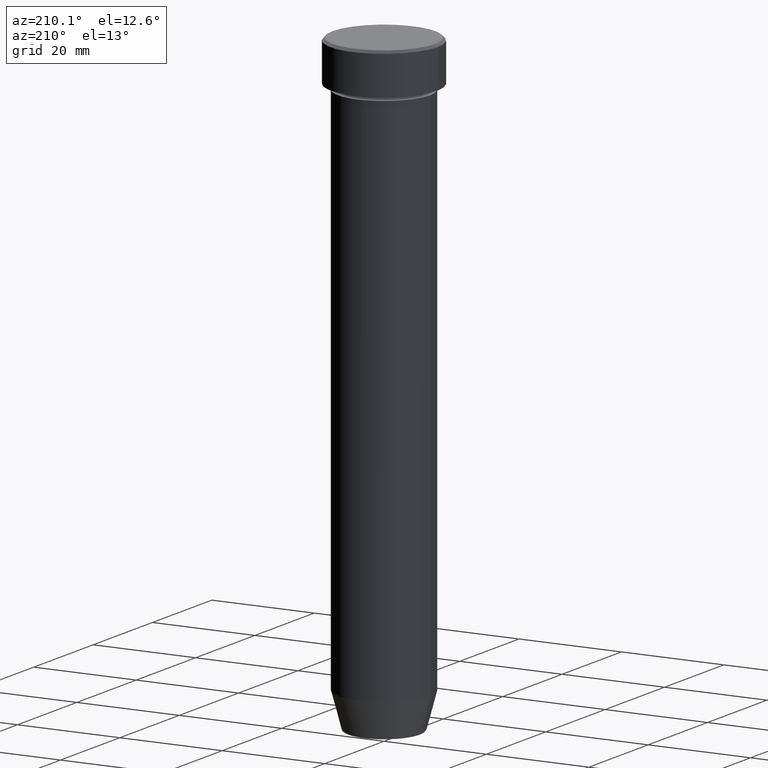
[diagram: clean part render]
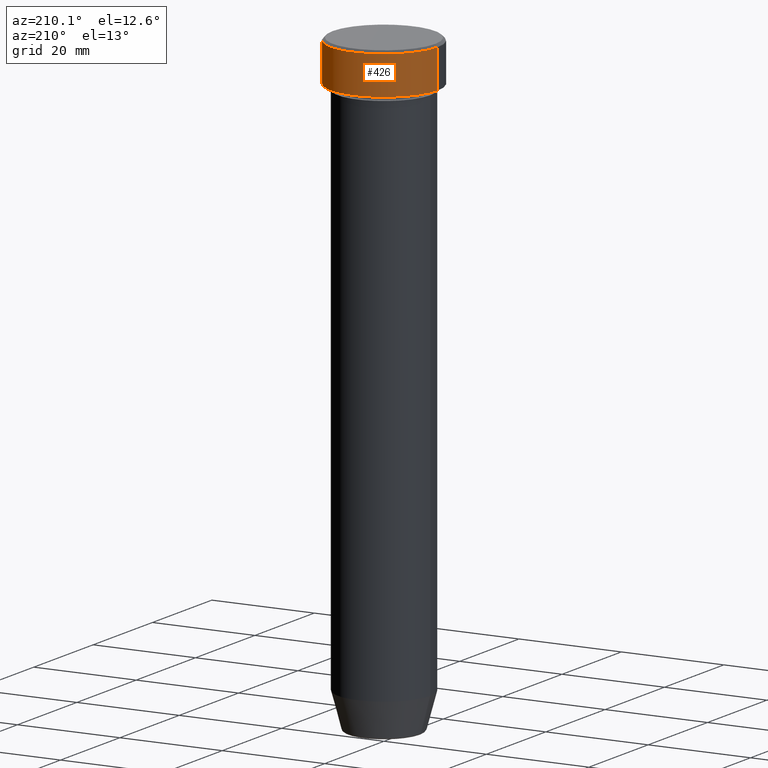
[diagram: same view with one face highlighted and labeled with its STEP entity id]
A machine part, auxiliary view. The second image highlights one B-rep face of the part: STEP entity #426.
In plain terms, the highlighted cylindrical surface (partial cylindrical patch) has radius 10.5 mm, axis along (-0, -0, 1).
Its self-contained STEP definition (entity closure, byte-faithful):
#14 = ORIENTED_EDGE ( 'NONE', *, *, #122, .T. ) ;
#15 = DIRECTION ( 'NONE',  ( 1.000000000000000000, 0.000000000000000000, 0.000000000000000000 ) ) ;
#20 = CIRCLE ( 'NONE', #99, 10.50000000000000000 ) ;
#25 = CARTESIAN_POINT ( 'NONE',  ( 10.50000000000000000, 0.000000000000000000, 0.000000000000000000 ) ) ;
#32 = CARTESIAN_POINT ( 'NONE',  ( 0.000000000000000000, 0.000000000000000000, -8.000000000000000000 ) ) ;
#44 = VERTEX_POINT ( 'NONE', #349 ) ;
#68 = DIRECTION ( 'NONE',  ( -0.000000000000000000, -0.000000000000000000, 1.000000000000000000 ) ) ;
#82 = EDGE_LOOP ( 'NONE', ( #502, #119, #14, #456 ) ) ;
#84 = DIRECTION ( 'NONE',  ( 1.000000000000000000, 0.000000000000000000, 0.000000000000000000 ) ) ;
#99 = AXIS2_PLACEMENT_3D ( 'NONE', #128, #544, #498 ) ;
#114 = EDGE_CURVE ( 'NONE', #44, #480, #139, .T. ) ;
#115 = DIRECTION ( 'NONE',  ( -0.000000000000000000, -0.000000000000000000, 1.000000000000000000 ) ) ;
#118 = CARTESIAN_POINT ( 'NONE',  ( -10.50000000000000000, 1.285879139104720831E-15, -0.5000000000000023315 ) ) ;
#119 = ORIENTED_EDGE ( 'NONE', *, *, #114, .T. ) ;
#122 = EDGE_CURVE ( 'NONE', #480, #522, #20, .T. ) ;
#125 = DIRECTION ( 'NONE',  ( -0.000000000000000000, -0.000000000000000000, 1.000000000000000000 ) ) ;
#128 = CARTESIAN_POINT ( 'NONE',  ( 0.000000000000000000, 0.000000000000000000, -0.5000000000000023315 ) ) ;
#139 = LINE ( 'NONE', #589, #206 ) ;
#175 = EDGE_CURVE ( 'NONE', #286, #44, #234, .T. ) ;
#190 = CARTESIAN_POINT ( 'NONE',  ( 10.50000000000000000, 0.000000000000000000, -8.000000000000000000 ) ) ;
#206 = VECTOR ( 'NONE', #324, 1000.000000000000000 ) ;
#234 = CIRCLE ( 'NONE', #245, 10.50000000000000000 ) ;
#245 = AXIS2_PLACEMENT_3D ( 'NONE', #32, #125, #84 ) ;
#251 = CARTESIAN_POINT ( 'NONE',  ( 10.50000000000000000, 0.000000000000000000, -0.5000000000000023315 ) ) ;
#286 = VERTEX_POINT ( 'NONE', #190 ) ;
#324 = DIRECTION ( 'NONE',  ( -0.000000000000000000, -0.000000000000000000, 1.000000000000000000 ) ) ;
#349 = CARTESIAN_POINT ( 'NONE',  ( -10.50000000000000000, 1.285879139104720831E-15, -8.000000000000000000 ) ) ;
#387 = LINE ( 'NONE', #25, #511 ) ;
#395 = CARTESIAN_POINT ( 'NONE',  ( 0.000000000000000000, 0.000000000000000000, 0.000000000000000000 ) ) ;
#397 = CYLINDRICAL_SURFACE ( 'NONE', #431, 10.50000000000000000 ) ;
#426 = ADVANCED_FACE ( 'NONE', ( #446 ), #397, .T. ) ;
#431 = AXIS2_PLACEMENT_3D ( 'NONE', #395, #68, #15 ) ;
#446 = FACE_OUTER_BOUND ( 'NONE', #82, .T. ) ;
#456 = ORIENTED_EDGE ( 'NONE', *, *, #487, .F. ) ;
#480 = VERTEX_POINT ( 'NONE', #118 ) ;
#487 = EDGE_CURVE ( 'NONE', #286, #522, #387, .T. ) ;
#498 = DIRECTION ( 'NONE',  ( 1.000000000000000000, 0.000000000000000000, 0.000000000000000000 ) ) ;
#502 = ORIENTED_EDGE ( 'NONE', *, *, #175, .T. ) ;
#511 = VECTOR ( 'NONE', #115, 1000.000000000000000 ) ;
#522 = VERTEX_POINT ( 'NONE', #251 ) ;
#544 = DIRECTION ( 'NONE',  ( 0.000000000000000000, 0.000000000000000000, -1.000000000000000000 ) ) ;
#589 = CARTESIAN_POINT ( 'NONE',  ( -10.50000000000000000, 1.285879139104720831E-15, 0.000000000000000000 ) ) ;